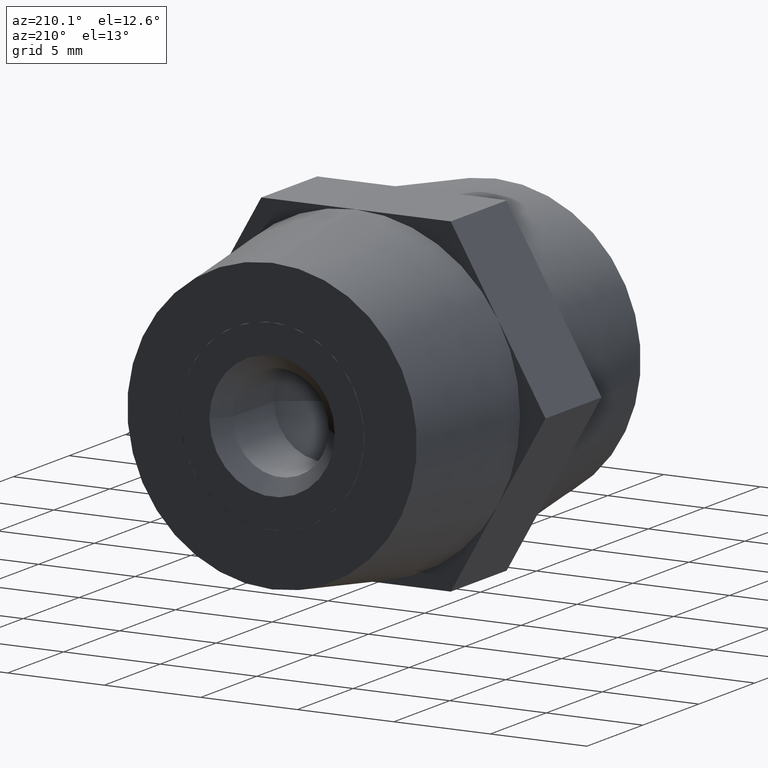
[diagram: clean part render]
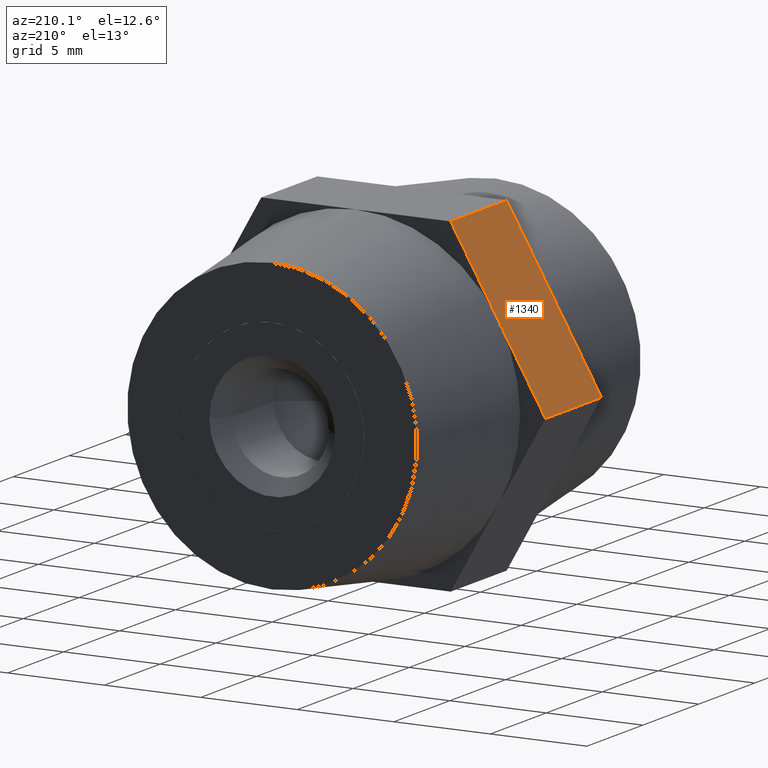
[diagram: same view with one face highlighted and labeled with its STEP entity id]
A machine part, auxiliary view. The second image highlights one B-rep face of the part: STEP entity #1340.
In plain terms, the highlighted planar face has unit normal (0.866, 0, -0.5).
Its self-contained STEP definition (entity closure, byte-faithful):
#3 = EDGE_CURVE ( 'NONE', #2452, #2127, #782, .T. ) ;
#60 = VECTOR ( 'NONE', #2222, 1000.000000000000000 ) ;
#153 = VECTOR ( 'NONE', #1210, 1000.000000000000000 ) ;
#323 = VECTOR ( 'NONE', #2864, 1000.000000000000000 ) ;
#330 = CARTESIAN_POINT ( 'NONE',  ( -9.814954576223648500, 2.500000000000000000, 1.646851074874740100E-015 ) ) ;
#380 = LINE ( 'NONE', #1939, #60 ) ;
#447 = EDGE_LOOP ( 'NONE', ( #2047, #1988, #590, #730, #3212, #2168 ) ) ;
#590 = ORIENTED_EDGE ( 'NONE', *, *, #2095, .F. ) ;
#617 = CARTESIAN_POINT ( 'NONE',  ( -9.814954576223648500, -2.500000000000000000, 1.646851074874740100E-015 ) ) ;
#730 = ORIENTED_EDGE ( 'NONE', *, *, #2627, .F. ) ;
#782 = LINE ( 'NONE', #330, #1387 ) ;
#783 = EDGE_CURVE ( 'NONE', #1294, #2842, #1101, .T. ) ;
#921 = DIRECTION ( 'NONE',  ( 0.4999999999999998900, 0.0000000000000000000, 0.8660254037844387100 ) ) ;
#969 = PLANE ( 'NONE',  #3380 ) ;
#1032 = LINE ( 'NONE', #2004, #323 ) ;
#1101 = LINE ( 'NONE', #617, #2400 ) ;
#1210 = DIRECTION ( 'NONE',  ( 0.0000000000000000000, -1.000000000000000000, 0.0000000000000000000 ) ) ;
#1273 = DIRECTION ( 'NONE',  ( -0.4999999999999998900, 0.0000000000000000000, -0.8660254037844387100 ) ) ;
#1294 = VERTEX_POINT ( 'NONE', #1846 ) ;
#1303 = CARTESIAN_POINT ( 'NONE',  ( -9.814954576223648500, -2.500000000000000000, 1.646851074874740100E-015 ) ) ;
#1340 = ADVANCED_FACE ( 'NONE', ( #3840 ), #969, .F. ) ;
#1387 = VECTOR ( 'NONE', #2139, 1000.000000000000000 ) ;
#1425 = EDGE_CURVE ( 'NONE', #2842, #3296, #1740, .T. ) ;
#1572 = CARTESIAN_POINT ( 'NONE',  ( -7.361215932167740000, 2.500000000000000000, 4.250000000000000000 ) ) ;
#1740 = LINE ( 'NONE', #1303, #1983 ) ;
#1846 = CARTESIAN_POINT ( 'NONE',  ( -9.814954576223648500, -2.500000000000000000, 1.646851074874740100E-015 ) ) ;
#1850 = CARTESIAN_POINT ( 'NONE',  ( -9.814954576223648500, 2.500000000000000000, 1.646851074874740100E-015 ) ) ;
#1866 = CARTESIAN_POINT ( 'NONE',  ( -9.814954576223648500, 2.500000000000000000, 1.646851074874740100E-015 ) ) ;
#1939 = CARTESIAN_POINT ( 'NONE',  ( -9.814954576223648500, 2.500000000000000000, 1.646851074874740100E-015 ) ) ;
#1983 = VECTOR ( 'NONE', #3597, 1000.000000000000000 ) ;
#1988 = ORIENTED_EDGE ( 'NONE', *, *, #1425, .T. ) ;
#2004 = CARTESIAN_POINT ( 'NONE',  ( -9.814954576223648500, 2.500000000000000000, 1.646851074874740100E-015 ) ) ;
#2047 = ORIENTED_EDGE ( 'NONE', *, *, #783, .T. ) ;
#2095 = EDGE_CURVE ( 'NONE', #3106, #3296, #3036, .T. ) ;
#2127 = VERTEX_POINT ( 'NONE', #1572 ) ;
#2139 = DIRECTION ( 'NONE',  ( 0.4999999999999998900, 0.0000000000000000000, 0.8660254037844387100 ) ) ;
#2168 = ORIENTED_EDGE ( 'NONE', *, *, #3670, .T. ) ;
#2222 = DIRECTION ( 'NONE',  ( 0.4999999999999998900, 0.0000000000000000000, 0.8660254037844387100 ) ) ;
#2400 = VECTOR ( 'NONE', #921, 1000.000000000000000 ) ;
#2452 = VERTEX_POINT ( 'NONE', #1866 ) ;
#2627 = EDGE_CURVE ( 'NONE', #2127, #3106, #380, .T. ) ;
#2842 = VERTEX_POINT ( 'NONE', #3335 ) ;
#2864 = DIRECTION ( 'NONE',  ( 0.0000000000000000000, -1.000000000000000000, 0.0000000000000000000 ) ) ;
#2987 = CARTESIAN_POINT ( 'NONE',  ( -4.907477288111829600, 2.500000000000000000, 8.500000000000000000 ) ) ;
#3007 = CARTESIAN_POINT ( 'NONE',  ( -4.907477288111829600, -2.500000000000000000, 8.500000000000000000 ) ) ;
#3036 = LINE ( 'NONE', #2987, #153 ) ;
#3106 = VERTEX_POINT ( 'NONE', #3483 ) ;
#3212 = ORIENTED_EDGE ( 'NONE', *, *, #3, .F. ) ;
#3296 = VERTEX_POINT ( 'NONE', #3007 ) ;
#3335 = CARTESIAN_POINT ( 'NONE',  ( -7.361215932167730200, -2.500000000000000000, 4.250000000000000000 ) ) ;
#3380 = AXIS2_PLACEMENT_3D ( 'NONE', #1850, #3640, #1273 ) ;
#3483 = CARTESIAN_POINT ( 'NONE',  ( -4.907477288111829600, 2.500000000000000000, 8.500000000000000000 ) ) ;
#3597 = DIRECTION ( 'NONE',  ( 0.4999999999999998900, 0.0000000000000000000, 0.8660254037844387100 ) ) ;
#3640 = DIRECTION ( 'NONE',  ( 0.8660254037844387100, 0.0000000000000000000, -0.4999999999999998900 ) ) ;
#3670 = EDGE_CURVE ( 'NONE', #2452, #1294, #1032, .T. ) ;
#3840 = FACE_OUTER_BOUND ( 'NONE', #447, .T. ) ;